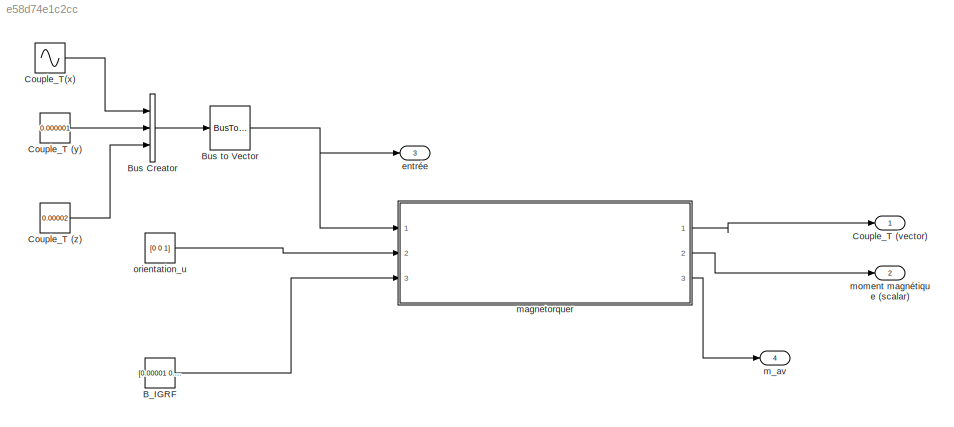
MODEL slx_e58d74e1c2cc
KIND model
CONFIG AbsTol = auto
CONFIG EnableMultiTasking = off
CONFIG FixedStep = auto
CONFIG MaxStep = auto
CONFIG MinStep = auto
CONFIG RelTol = 1e-3
CONFIG SampleTimeConstraint = Unconstrained
CONFIG Solver = VariableStepAuto
CONFIG SolverName = VariableStepAuto
CONFIG StartTime = 0.0
CONFIG StopTime = 10.0
BLOCK [Constant] B_IGRF
  Value = [0.00001 0.00004 0.00003]
BLOCK [BusCreator] Bus Creator
  DisplayOption = bar
  InheritFromInputs = on
  Inputs = 3
  Ports = [3, 1]
BLOCK [BusToVector] Bus to Vector
BLOCK [Outport] Couple_T (vector) 
  IconDisplay = Port number
BLOCK [Constant] Couple_T (y)
  Value = 0.000001
BLOCK [Constant] Couple_T (z) 
  Value = 0.00002
BLOCK [Sin] Couple_T(x)
  Amplitude = 0.00005
  Phase = 0.2
  Ports = [0, 1]
  SampleTime = 0
BLOCK [Outport] entrée
  IconDisplay = Port number
  Port = 3
BLOCK [Outport] m_av
  IconDisplay = Port number
  Port = 4
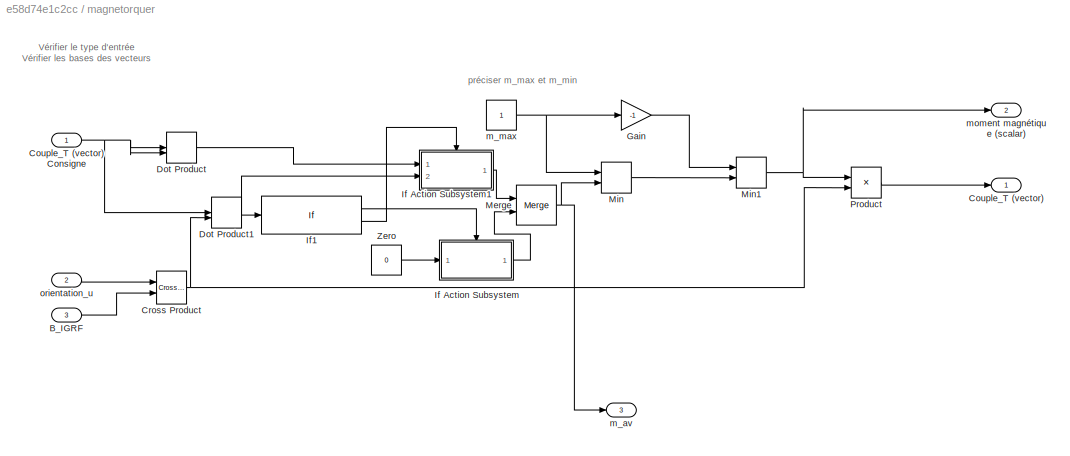
BLOCK [SubSystem] magnetorquer
  Ports = [3, 3]
  RequestExecContextInheritance = off
BLOCK [Inport] magnetorquer/B_IGRF
  IconDisplay = Port number
  Port = 3
  PortDimensions = 3
BLOCK [Outport] magnetorquer/Couple_T (vector) 
  IconDisplay = Port number
BLOCK [Inport] magnetorquer/Couple_T (vector) Consigne
  IconDisplay = Port number
  PortDimensions = 3
BLOCK [Reference] magnetorquer/Cross Product  REF=vrlib/Utilities/Cross Product
  Ports = [2, 1]
  SourceBlock = vrlib/Utilities/Cross Product
  SourceProductBaseCode = SL
  SourceProductName = Simulink
  SourceType = Cross Product
BLOCK [DotProduct] magnetorquer/Dot Product
  OutDataTypeStr = Inherit: Inherit via internal rule
BLOCK [DotProduct] magnetorquer/Dot Product1
  OutDataTypeStr = Inherit: Inherit via internal rule
BLOCK [Gain] magnetorquer/Gain
  Gain = -1
  OutDataTypeStr = Inherit: Inherit via internal rule
  ParamDataTypeStr = Inherit: Inherit via internal rule
  SaturateOnIntegerOverflow = off
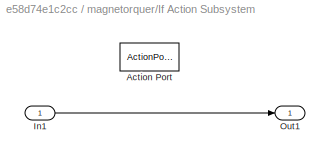
BLOCK [SubSystem] magnetorquer/If Action Subsystem
  Ports = [1, 1, 0, 0, 0, 0, 0, 1]
  RequestExecContextInheritance = off
  TreatAsAtomicUnit = on
BLOCK [ActionPort] magnetorquer/If Action Subsystem/Action Port
  ActionPortLabel = if(u1<0.000000000005 & u1>-0.000000000005)
BLOCK [Inport] magnetorquer/If Action Subsystem/In1
  IconDisplay = Port number
BLOCK [Outport] magnetorquer/If Action Subsystem/Out1
  IconDisplay = Port number
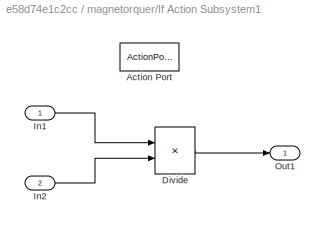
BLOCK [SubSystem] magnetorquer/If Action Subsystem1
  Ports = [2, 1, 0, 0, 0, 0, 0, 1]
  RequestExecContextInheritance = off
  TreatAsAtomicUnit = on
BLOCK [ActionPort] magnetorquer/If Action Subsystem1/Action Port
  ActionPortLabel = else
BLOCK [Product] magnetorquer/If Action Subsystem1/Divide
  InputSameDT = off
  Inputs = */
  OutDataTypeStr = Inherit: Inherit via internal rule
  Ports = [2, 1]
  RndMeth = Floor
  SaturateOnIntegerOverflow = off
BLOCK [Inport] magnetorquer/If Action Subsystem1/In1
  IconDisplay = Port number
BLOCK [Inport] magnetorquer/If Action Subsystem1/In2
  IconDisplay = Port number
  Port = 2
BLOCK [Outport] magnetorquer/If Action Subsystem1/Out1
  IconDisplay = Port number
BLOCK [If] magnetorquer/If1
  IfExpression = u1<0.000000000005 & u1>-0.000000000005
  Ports = [1, 2]
BLOCK [Merge] magnetorquer/Merge
  Ports = [2, 1]
BLOCK [MinMax] magnetorquer/Min
  InputSameDT = off
  Inputs = 2
  Ports = [2, 1]
  SaturateOnIntegerOverflow = off
BLOCK [MinMax] magnetorquer/Min1
  Function = max
  InputSameDT = off
  Inputs = 2
  Ports = [2, 1]
  SaturateOnIntegerOverflow = off
BLOCK [Product] magnetorquer/Product
  InputSameDT = off
  OutDataTypeStr = Inherit: Inherit via internal rule
  Ports = [2, 1]
  RndMeth = Floor
  SaturateOnIntegerOverflow = off
BLOCK [Constant] magnetorquer/Zero
  OutDataTypeStr = Inherit: Inherit via back propagation
  Value = 0
BLOCK [Outport] magnetorquer/m_av
  IconDisplay = Port number
  Port = 3
BLOCK [Constant] magnetorquer/m_max
BLOCK [Outport] magnetorquer/moment magnétique (scalar)
  IconDisplay = Port number
  Port = 2
BLOCK [Inport] magnetorquer/orientation_u
  IconDisplay = Port number
  Port = 2
  PortDimensions = 3
BLOCK [Outport] moment magnétique (scalar)
  IconDisplay = Port number
  Port = 2
BLOCK [Constant] orientation_u 
  Value = [0 0 1]
ANNOTATION magnetorquer: Vérifier le type d'entrée Vérifier les bases des vecteurs
ANNOTATION magnetorquer: préciser m_max et m_min
LINE B_IGRF:1 -> magnetorquer:3
LINE Bus Creator:1 -> Bus to Vector:1
NET Bus to Vector:1 -> entrée:1, magnetorquer:1
LINE Couple_T (y):1 -> Bus Creator:2
LINE Couple_T (z) :1 -> Bus Creator:3
LINE Couple_T(x):1 -> Bus Creator:1
LINE magnetorquer/B_IGRF:1 -> magnetorquer/Cross Product:2
NET magnetorquer/Couple_T (vector) Consigne:1 -> magnetorquer/Dot Product1:1, magnetorquer/Dot Product:1, magnetorquer/Dot Product:2
NET magnetorquer/Cross Product:1 -> magnetorquer/Dot Product1:2, magnetorquer/Product:2
NET magnetorquer/Dot Product1:1 -> magnetorquer/If Action Subsystem1:2, magnetorquer/If1:1
LINE magnetorquer/Dot Product:1 -> magnetorquer/If Action Subsystem1:1
LINE magnetorquer/Gain:1 -> magnetorquer/Min1:1
LINE magnetorquer/If Action Subsystem/In1:1 -> magnetorquer/If Action Subsystem/Out1:1
LINE magnetorquer/If Action Subsystem1/Divide:1 -> magnetorquer/If Action Subsystem1/Out1:1
LINE magnetorquer/If Action Subsystem1/In1:1 -> magnetorquer/If Action Subsystem1/Divide:1
LINE magnetorquer/If Action Subsystem1/In2:1 -> magnetorquer/If Action Subsystem1/Divide:2
LINE magnetorquer/If Action Subsystem1:1 -> magnetorquer/Merge:1
LINE magnetorquer/If Action Subsystem:1 -> magnetorquer/Merge:2
LINE magnetorquer/If1:1 -> magnetorquer/If Action Subsystem:ifaction
LINE magnetorquer/If1:2 -> magnetorquer/If Action Subsystem1:ifaction
NET magnetorquer/Merge:1 -> magnetorquer/Min:2, magnetorquer/m_av:1
NET magnetorquer/Min1:1 -> magnetorquer/Product:1, magnetorquer/moment magnétique (scalar):1
LINE magnetorquer/Min:1 -> magnetorquer/Min1:2
LINE magnetorquer/Product:1 -> magnetorquer/Couple_T (vector) :1
LINE magnetorquer/Zero:1 -> magnetorquer/If Action Subsystem:1
NET magnetorquer/m_max:1 -> magnetorquer/Gain:1, magnetorquer/Min:1
LINE magnetorquer/orientation_u:1 -> magnetorquer/Cross Product:1
LINE magnetorquer:1 -> Couple_T (vector) :1
LINE magnetorquer:2 -> moment magnétique (scalar):1
LINE magnetorquer:3 -> m_av:1
LINE orientation_u :1 -> magnetorquer:2
note: NET lines group one-source signal fan-out (src -> all destinations, sorted); 1:1 wires keep LINE
